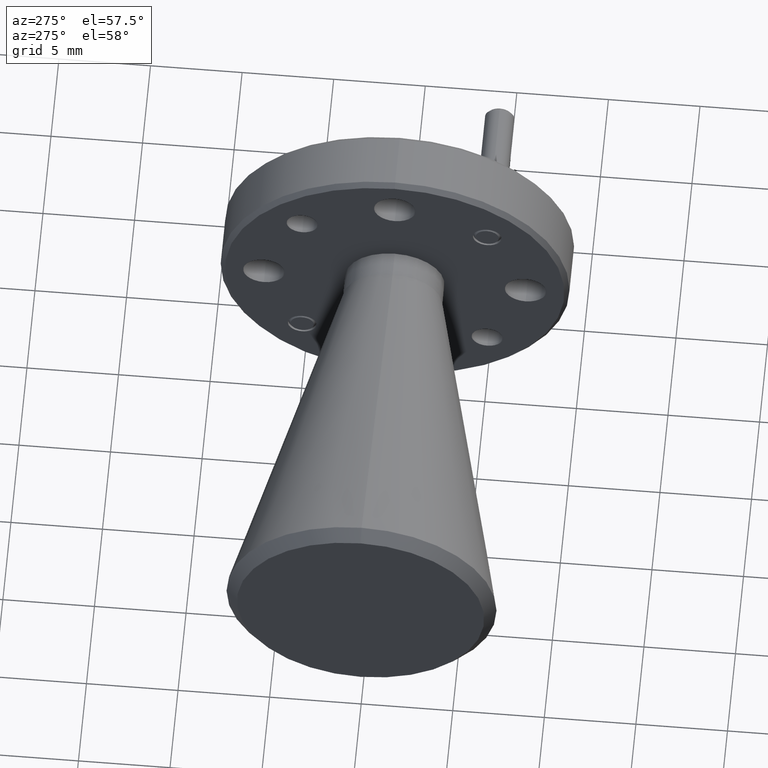
[diagram: clean part render]
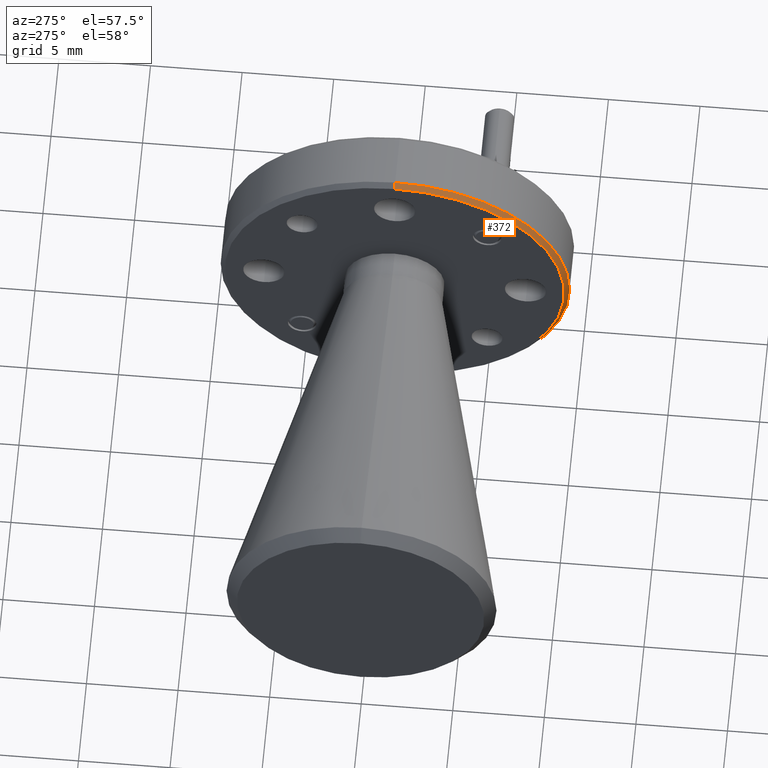
[diagram: same view with one face highlighted and labeled with its STEP entity id]
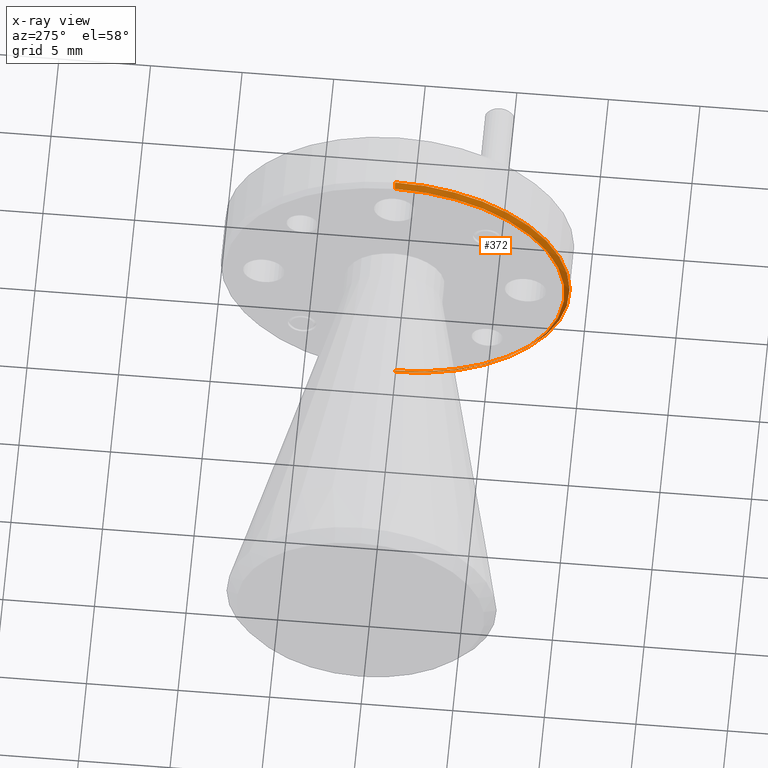
[diagram: x-ray of the same camera — body ghosted, the highlighted face saturated]
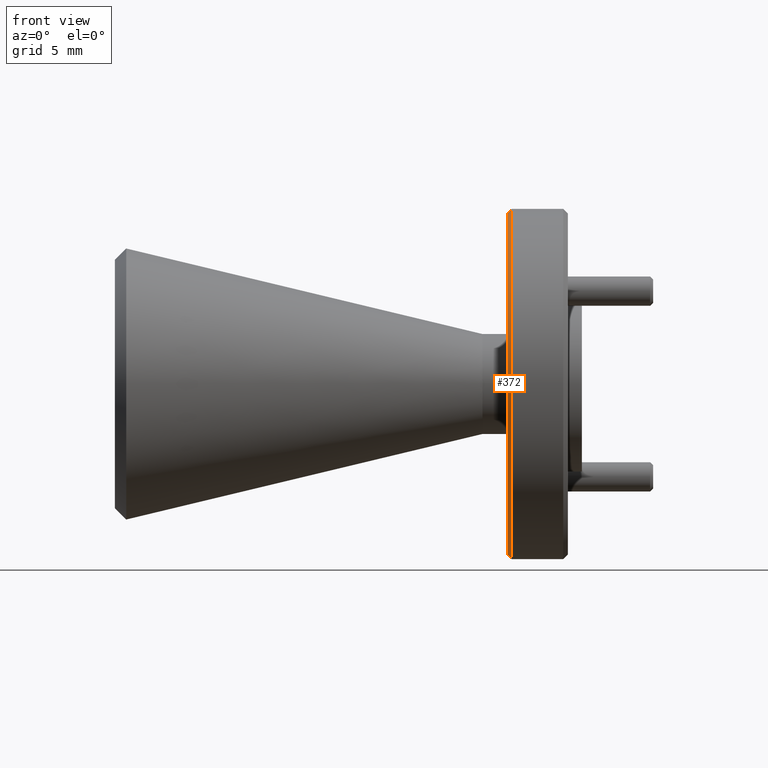
[diagram: same view with one face highlighted and labeled with its STEP entity id]
A machine part, auxiliary view. The second image highlights one B-rep face of the part: STEP entity #372.
The next image is the same camera in x-ray: the body ghosted, the highlighted face saturated — about 5% of this face is hidden behind the body in this view.
A second angle (front view) of the same face is appended — the face is thin or edge-on in the first view.
In plain terms, the highlighted conical surface has half-angle 45 deg.
Its self-contained STEP definition (entity closure, byte-faithful):
#108 = EDGE_CURVE ( 'NONE', #1573, #999, #436, .T. ) ;
#123 = ORIENTED_EDGE ( 'NONE', *, *, #1094, .F. ) ;
#189 = AXIS2_PLACEMENT_3D ( 'NONE', #1796, #811, #1457 ) ;
#305 = FACE_OUTER_BOUND ( 'NONE', #654, .T. ) ;
#372 = ADVANCED_FACE ( 'NONE', ( #305 ), #1313, .T. ) ;
#407 = VECTOR ( 'NONE', #737, 39.37007874015748100 ) ;
#423 = ORIENTED_EDGE ( 'NONE', *, *, #692, .F. ) ;
#436 = LINE ( 'NONE', #1479, #836 ) ;
#448 = AXIS2_PLACEMENT_3D ( 'NONE', #1542, #543, #1707 ) ;
#504 = DIRECTION ( 'NONE',  ( -1.000000000000000000, 0.0000000000000000000, 0.0000000000000000000 ) ) ;
#543 = DIRECTION ( 'NONE',  ( 1.000000000000000000, -0.0000000000000000000, -0.0000000000000000000 ) ) ;
#654 = EDGE_LOOP ( 'NONE', ( #1969, #123, #1502, #423 ) ) ;
#692 = EDGE_CURVE ( 'NONE', #2133, #999, #1151, .T. ) ;
#737 = DIRECTION ( 'NONE',  ( 0.7071067811865426900, 8.659560562354990800E-017, 0.7071067811865523500 ) ) ;
#811 = DIRECTION ( 'NONE',  ( 1.000000000000000000, -0.0000000000000000000, -0.0000000000000000000 ) ) ;
#836 = VECTOR ( 'NONE', #2113, 39.37007874015748100 ) ;
#857 = LINE ( 'NONE', #1254, #407 ) ;
#999 = VERTEX_POINT ( 'NONE', #2088 ) ;
#1094 = EDGE_CURVE ( 'NONE', #1573, #2004, #1933, .T. ) ;
#1119 = CARTESIAN_POINT ( 'NONE',  ( -0.1600000000000000000, 0.0000000000000000000, -0.3649999999999997700 ) ) ;
#1151 = CIRCLE ( 'NONE', #189, 0.3750000000000000600 ) ;
#1169 = EDGE_CURVE ( 'NONE', #2004, #2133, #857, .T. ) ;
#1186 = CARTESIAN_POINT ( 'NONE',  ( -0.1600000000000000000, 4.531193156845206100E-017, 0.3649999999999997700 ) ) ;
#1189 = DIRECTION ( 'NONE',  ( 0.0000000000000000000, 0.0000000000000000000, 1.000000000000000000 ) ) ;
#1254 = CARTESIAN_POINT ( 'NONE',  ( -0.1499999999999999100, 4.592425496802575500E-017, 0.3750000000000000600 ) ) ;
#1309 = AXIS2_PLACEMENT_3D ( 'NONE', #1511, #504, #1189 ) ;
#1313 = CONICAL_SURFACE ( 'NONE', #448, 0.3750000000000000600, 0.7853981633974551600 ) ;
#1457 = DIRECTION ( 'NONE',  ( 0.0000000000000000000, 0.0000000000000000000, 1.000000000000000000 ) ) ;
#1479 = CARTESIAN_POINT ( 'NONE',  ( -0.1499999999999999100, 0.0000000000000000000, -0.3750000000000000600 ) ) ;
#1502 = ORIENTED_EDGE ( 'NONE', *, *, #108, .T. ) ;
#1511 = CARTESIAN_POINT ( 'NONE',  ( -0.1600000000000000000, 0.0000000000000000000, 0.0000000000000000000 ) ) ;
#1542 = CARTESIAN_POINT ( 'NONE',  ( -0.1499999999999999100, 0.0000000000000000000, 0.0000000000000000000 ) ) ;
#1573 = VERTEX_POINT ( 'NONE', #1119 ) ;
#1707 = DIRECTION ( 'NONE',  ( 0.0000000000000000000, 0.0000000000000000000, -1.000000000000000000 ) ) ;
#1796 = CARTESIAN_POINT ( 'NONE',  ( -0.1499999999999999100, 0.0000000000000000000, 0.0000000000000000000 ) ) ;
#1870 = CARTESIAN_POINT ( 'NONE',  ( -0.1499999999999999100, 4.592425496802575500E-017, 0.3750000000000000600 ) ) ;
#1933 = CIRCLE ( 'NONE', #1309, 0.3649999999999997700 ) ;
#1969 = ORIENTED_EDGE ( 'NONE', *, *, #1169, .F. ) ;
#2004 = VERTEX_POINT ( 'NONE', #1186 ) ;
#2088 = CARTESIAN_POINT ( 'NONE',  ( -0.1499999999999999100, 0.0000000000000000000, -0.3750000000000000600 ) ) ;
#2113 = DIRECTION ( 'NONE',  ( 0.7071067811865426900, 0.0000000000000000000, -0.7071067811865523500 ) ) ;
#2133 = VERTEX_POINT ( 'NONE', #1870 ) ;